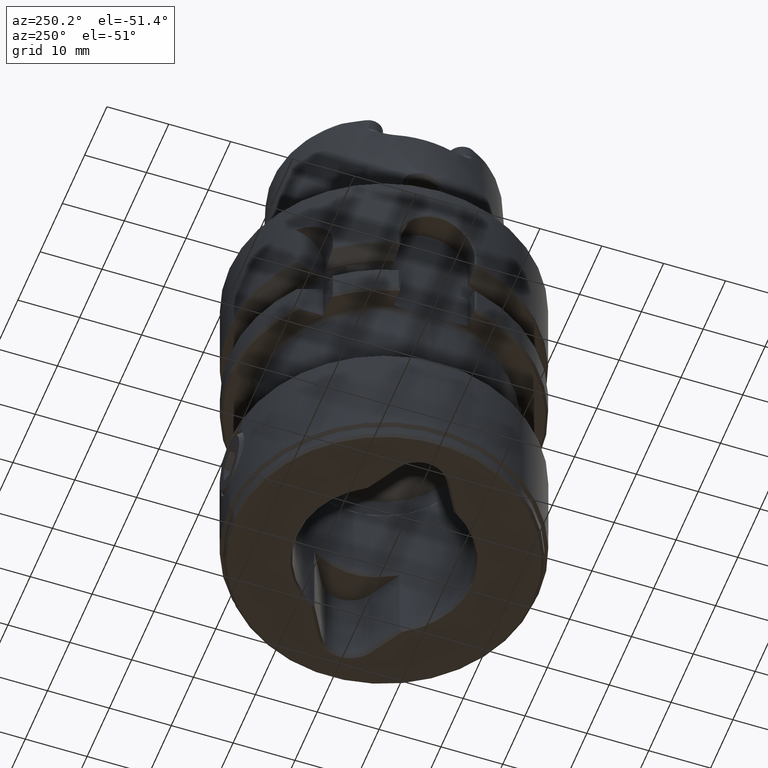
[diagram: clean part render]
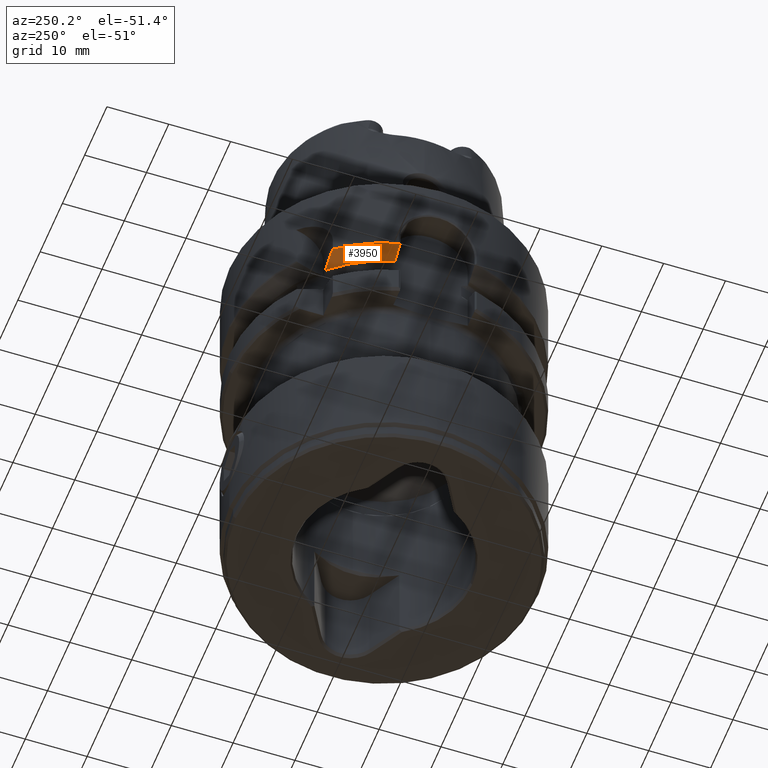
[diagram: same view with one face highlighted and labeled with its STEP entity id]
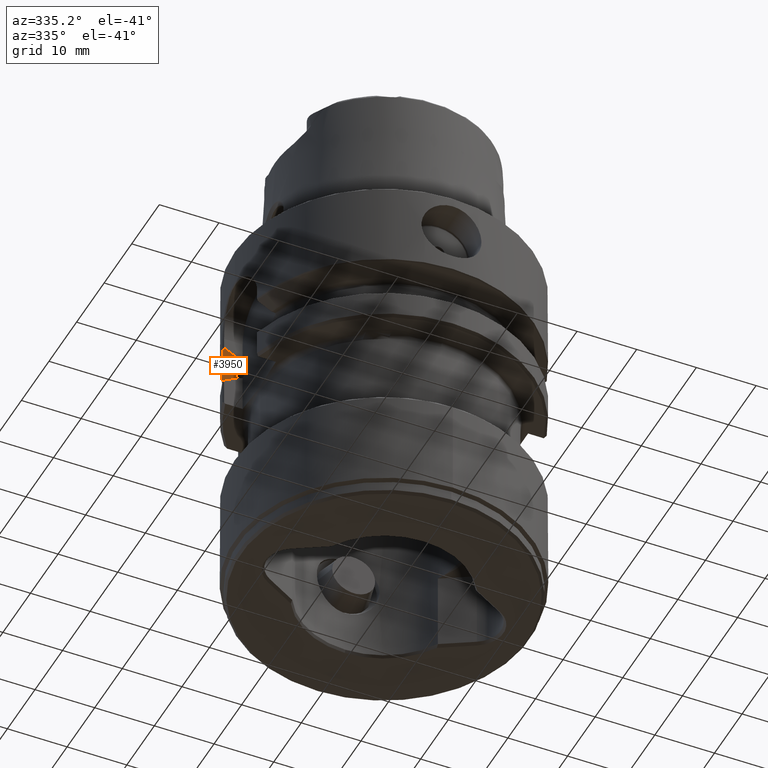
[diagram: same view with one face highlighted and labeled with its STEP entity id]
A machine part, auxiliary view. The second image highlights one B-rep face of the part: STEP entity #3950.
A second angle (auxiliary view) of the same face is appended — the face is thin or edge-on in the first view.
In plain terms, the highlighted conical surface has half-angle 60 deg.
Its self-contained STEP definition (entity closure, byte-faithful):
#1738=VERTEX_POINT('NONE',#4734);
#1824=EDGE_CURVE('NONE',#1738,#2332,#4828,.T.);
#1870=VERTEX_POINT('NONE',#4879);
#1896=VERTEX_POINT('NONE',#4907);
#2094=EDGE_CURVE('NONE',#1896,#1870,#5125,.F.);
#2332=VERTEX_POINT('NONE',#5383);
#2580=EDGE_CURVE('NONE',#1870,#1738,#5650,.F.);
#3568=VERTEX_POINT('NONE',#6753);
#3950=ADVANCED_FACE('NONE',(#7175),#7176,.T.);
#4326=EDGE_CURVE('NONE',#3568,#1896,#7581,.T.);
#4460=EDGE_CURVE('NONE',#3568,#2332,#7733,.T.);
#4734=CARTESIAN_POINT('',(-16.365238250097,15.35,-16.0875));
#4828=(B_SPLINE_CURVE(2,(#8634,#8635,#8636),.UNSPECIFIED.,.F.,.F.)B_SPLINE_CURVE_WITH_KNOTS((3,3),(3.76887709857569,7.16869404891599),.UNSPECIFIED.)RATIONAL_B_SPLINE_CURVE((1.00885667756965,1.0103687843067,1.00740190721011))BOUNDED_CURVE()REPRESENTATION_ITEM('')GEOMETRIC_REPRESENTATION_ITEM()CURVE());
#4879=CARTESIAN_POINT('',(-21.6155781031283,6.0175,-16.0875));
#4907=CARTESIAN_POINT('',(-24.0054537795788,6.0175,-14.7534589648114));
#5125=(B_SPLINE_CURVE(2,(#9444,#9445,#9446),.UNSPECIFIED.,.F.,.F.)B_SPLINE_CURVE_WITH_KNOTS((3,3),(2.86758322294911,5.59103046600234),.UNSPECIFIED.)RATIONAL_B_SPLINE_CURVE((1.00505006109067,1.00608860604463,1.00454469009868))BOUNDED_CURVE()REPRESENTATION_ITEM('')GEOMETRIC_REPRESENTATION_ITEM()CURVE());
#5383=CARTESIAN_POINT('',(-19.5104619371248,15.35,-14.7091034656192));
#5650=CIRCLE('',#10682,22.4375471694755);
#6753=CARTESIAN_POINT('',(-24.0613487450638,6.11000176500901,-14.7091034656192));
#7175=FACE_OUTER_BOUND('',#15163,.T.);
#7176=CONICAL_SURFACE('',#15164,29.95,1.04719755119659);
#7581=(B_SPLINE_CURVE(2,(#16665,#16666,#16667),.UNSPECIFIED.,.F.,.F.)B_SPLINE_CURVE_WITH_KNOTS((3,3),(3.04423864490081,3.16046366529246),.UNSPECIFIED.)RATIONAL_B_SPLINE_CURVE((1.00406176012191,1.00407679615733,1.00408705983536))BOUNDED_CURVE()REPRESENTATION_ITEM('')GEOMETRIC_REPRESENTATION_ITEM()CURVE());
#7733=CIRCLE('',#16948,24.825);
#8634=CARTESIAN_POINT('',(-16.3652382500643,15.35,-16.0875000000138));
#8635=CARTESIAN_POINT('',(-17.8584100967673,15.35,-15.4587237651046));
#8636=CARTESIAN_POINT('',(-19.5104619371248,15.35,-14.7091034656192));
#9444=CARTESIAN_POINT('',(-21.6155781031315,6.0175,-16.0874999999982));
#9445=CARTESIAN_POINT('',(-22.7520013020499,6.0175,-15.4554216142441));
#9446=CARTESIAN_POINT('',(-24.0054537795788,6.0175,-14.7534589648114));
#10682=AXIS2_PLACEMENT_3D('',#18139,#18140,#18141);
#15163=EDGE_LOOP('',(#20018,#20019,#20020,#20021,#20022));
#15164=AXIS2_PLACEMENT_3D('',#20023,#20024,#20025);
#16665=CARTESIAN_POINT('',(-24.0613487450638,6.11000176500902,-14.7091034656192));
#16666=CARTESIAN_POINT('',(-24.0333579507371,6.06367920524437,-14.7313492351357));
#16667=CARTESIAN_POINT('',(-24.0054537795788,6.01750000000001,-14.7534589648113));
#16948=AXIS2_PLACEMENT_3D('',#20588,#20589,#20590);
#18139=CARTESIAN_POINT('',(0.0,0.0,-16.0875));
#18140=DIRECTION('',(0.0,0.0,1.0));
#18141=DIRECTION('',(-1.0,0.0,0.0));
#20018=ORIENTED_EDGE('',*,*,#4326,.F.);
#20019=ORIENTED_EDGE('',*,*,#4460,.T.);
#20020=ORIENTED_EDGE('',*,*,#1824,.F.);
#20021=ORIENTED_EDGE('',*,*,#2580,.F.);
#20022=ORIENTED_EDGE('',*,*,#2094,.F.);
#20023=CARTESIAN_POINT('',(0.0,0.0,-11.7501833360223));
#20024=DIRECTION('',(-0.0,-0.0,1.0));
#20025=DIRECTION('',(-1.0,0.0,0.0));
#20588=CARTESIAN_POINT('',(0.0,-1.45929722902265E-018,-14.7091034656192));
#20589=DIRECTION('',(0.0,0.0,-1.0));
#20590=DIRECTION('',(0.0,1.0,0.0));